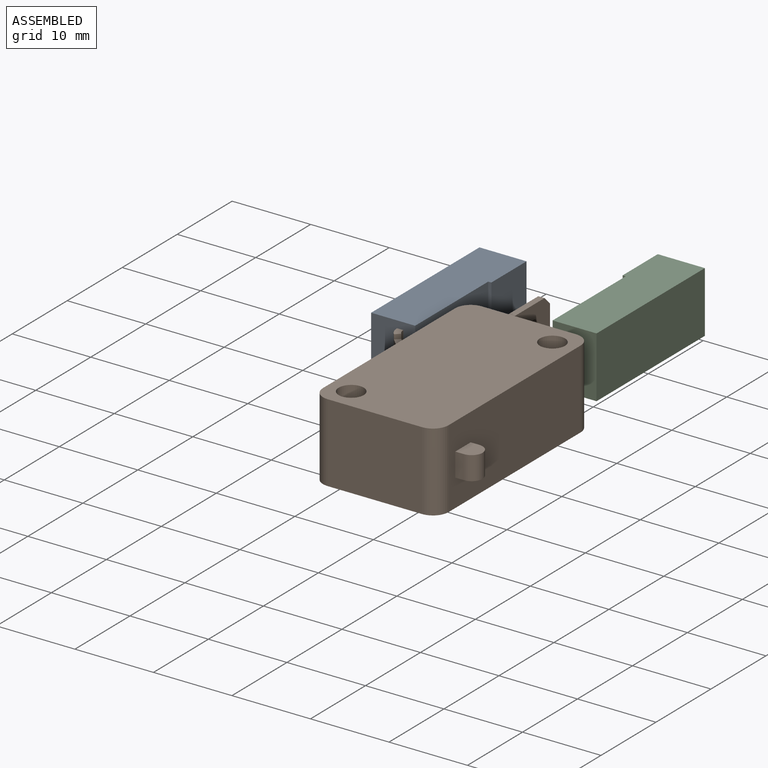
[diagram: assembled view]
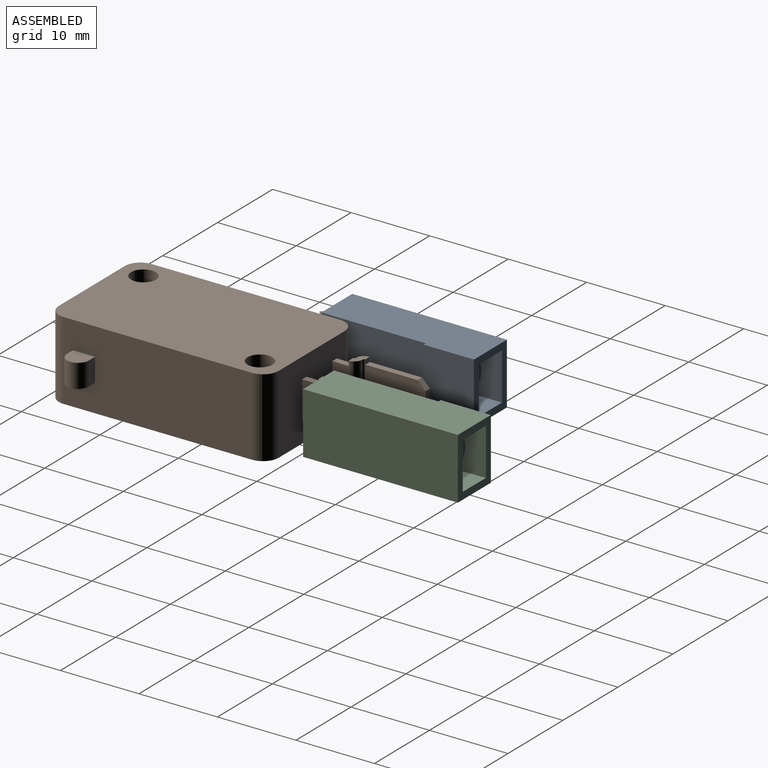
[diagram: assembled view, second angle]
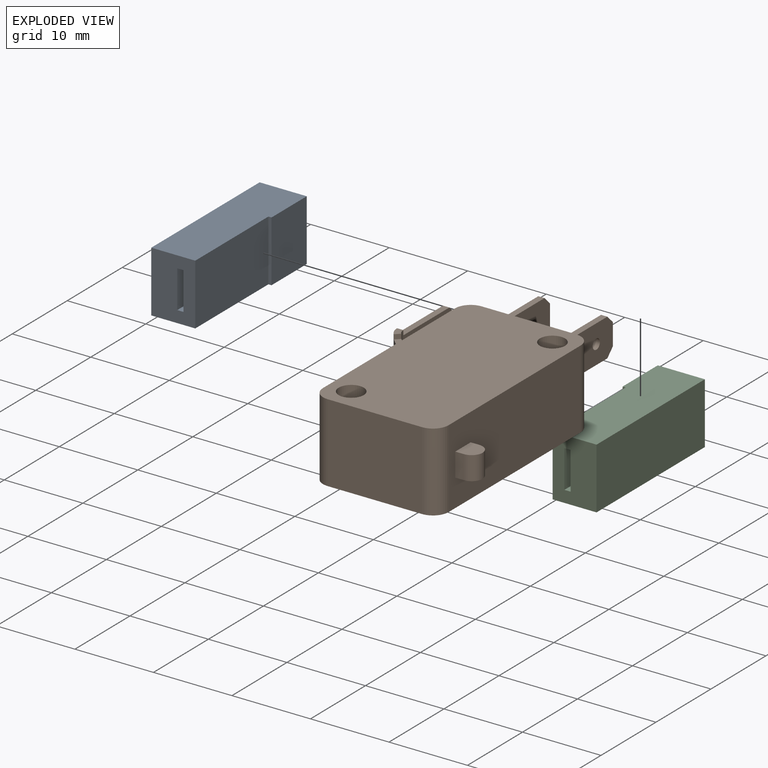
[diagram: exploded view]
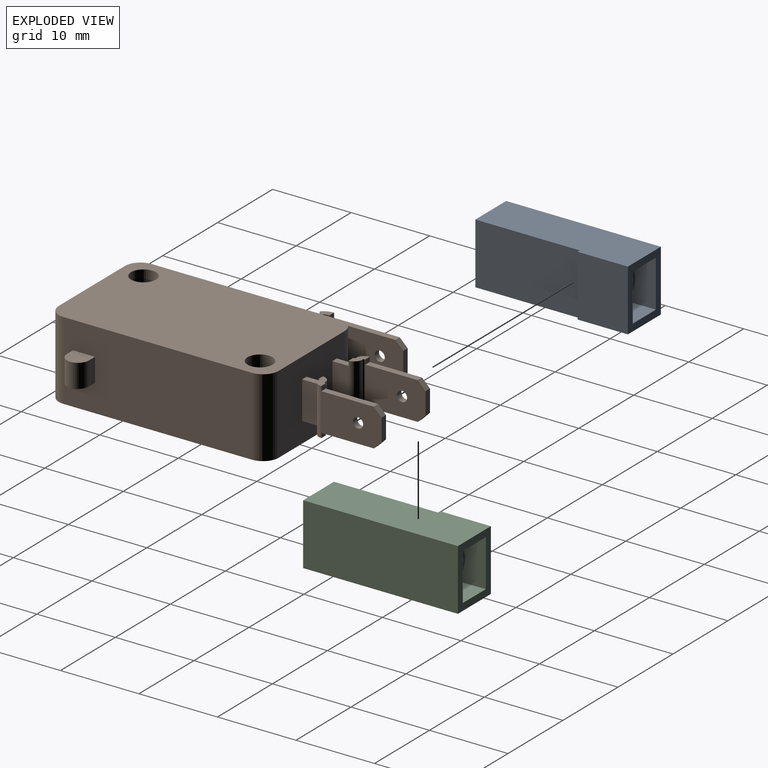
[diagram: exploded view, second angle]
ASSEMBLY  parts=3 mates=6
PART A: 22 faces, bbox 7.8x19.7x6 mm
  f0: plane 7.8x5.6mm, normal (0,-1,0), area 39.8mm2, adj f4,f5,f6,f7,f17,f18,f19,f20
  f1: plane 7.8x6mm, normal (0,1,0), area 21.6mm2, adj f2,f5,f6,f7,f8,f10,f11,f12
  f2: plane 7.8x6.4mm, normal (0,0,1), area 49.9mm2, adj f1,f3,f6,f7
  f3: plane 7.8x0.4mm, normal (0,-1,0), area 3.1mm2, adj f2,f4,f6,f7
  f4: plane 13.3x7.8mm, normal (0,0,1), area 103.7mm2, adj f0,f3,f6,f7
  f5: plane 19.7x7.8mm, normal (0,0,-1), area 153.7mm2, adj f0,f1,f6,f7
  f6: plane 19.7x6mm, normal (1,0,0), area 112.9mm2, adj f0,f1,f2,f3,f4,f5
  f7: plane 19.7x6mm, normal (-1,0,0), area 112.9mm2, adj f0,f1,f2,f3,f4,f5
  f8: plane 10.7x6mm, normal (0,0.02,-1), area 64.2mm2, adj f1,f9,f11,f12
  f9: plane 6x4mm, normal (0,1,0), area 12.7mm2, adj f8,f10,f11,f12,f15
  f10: plane 10.7x6mm, normal (0,0,1), area 64.2mm2, adj f1,f9,f11,f12
  f11: plane 10.7x4.2mm, normal (1,0,0), area 43.9mm2, adj f1,f8,f9,f10
  f12: plane 10.7x4.2mm, normal (-1,0,0), area 43.9mm2, adj f1,f8,f9,f10
  f13: plane 3.8x3.8mm, normal (0,1,0), area 4.3mm2, adj f14,f15
  f14: cylinder r=1.5mm len=8.2mm, axis (0,-1,0), area 77.3mm2, adj f13,f16
  f15: cylinder r=1.9mm len=8.2mm, axis (0,-1,0), area 97.9mm2, adj f9,f13
  f16: plane 3x3mm, normal (0,1,0), area 7.1mm2, adj f14
  f17: plane 8x4.8mm, normal (0,0,-1), area 38.4mm2, adj f0,f18,f20,f21
  f18: plane 8x0.8mm, normal (1,0,0), area 6.4mm2, adj f0,f17,f19,f21
  f19: plane 8x4.8mm, normal (0,0,1), area 38.4mm2, adj f0,f18,f20,f21
  f20: plane 8x0.8mm, normal (-1,0,0), area 6.4mm2, adj f0,f17,f19,f21
  f21: plane 4.8x0.8mm, normal (0,-1,0), area 3.8mm2, adj f17,f18,f19,f20
PART B: 81 faces, bbox 23.1x39x10 mm
  f0: plane 12x10mm, normal (0,1,0), area 112.3mm2, adj f2,f3,f10,f11,f18,f20,f36,f37
  f1: plane 24x10mm, normal (1,0,0), area 231.6mm2, adj f2,f9,f10,f11,f12,f13,f14,f15
  f2: cylinder r=2mm len=10mm, axis (0,0,-1), area 31.4mm2, adj f0,f1,f10,f11
  f3: cylinder r=2mm len=10mm, axis (0,0,-1), area 31.4mm2, adj f0,f4,f10,f11
  f4: plane 24x10mm, normal (-1,0,0), area 234.6mm2, adj f3,f5,f10,f11,f62,f63,f69,f73
  f5: cylinder r=2mm len=10mm, axis (0,0,-1), area 31.4mm2, adj f4,f6,f10,f11
  f6: plane 12x10mm, normal (0,-1,0), area 120mm2, adj f5,f9,f10,f11
  f7: cylinder r=1.6mm len=10mm, axis (0,0,-1), area 100.5mm2, adj f10,f11
  f8: cylinder r=1.6mm len=10mm, axis (0,0,-1), area 100.5mm2, adj f10,f11
  f9: cylinder r=2mm len=10mm, axis (0,0,-1), area 31.4mm2, adj f1,f6,f10,f11
  f10: plane 28x16mm, normal (0,0,1), area 428.5mm2, adj f0,f1,f2,f3,f4,f5,f6,f7
  f11: plane 28x16mm, normal (0,0,-1), area 428.5mm2, adj f0,f1,f2,f3,f4,f5,f6,f7
  f12: plane 3x1.1mm, normal (0,-1,0), area 3.3mm2, adj f1,f14,f15,f16
  f13: plane 3x1.1mm, normal (0,1,0), area 3.3mm2, adj f1,f14,f15,f16
  f14: plane 2.8x2.5mm, normal (0,0,1), area 6.2mm2, adj f1,f12,f13,f16
  f15: plane 2.8x2.5mm, normal (0,0,-1), area 6.2mm2, adj f1,f12,f13,f16
  f16: cylinder r=1.4mm len=3mm, axis (0,0,-1), area 13.2mm2, adj f12,f13,f14,f15
  f17: plane 2.8x0.8mm, normal (0,1,0), area 2.2mm2, adj f22,f23,f31,f32
  f18: plane 4.8x2.08mm, normal (1,0,0), area 10mm2, adj f0,f24,f36,f37
  f19: plane 2.05x1.25mm, normal (0,0,-1), area 1.6mm2, adj f24,f25,f26,f27,f34,f38
  f20: plane 4.8x2.08mm, normal (-1,0,0), area 10mm2, adj f0,f25,f36,f37
  f21: plane 2.05x1.25mm, normal (0,0,1), area 1.6mm2, adj f24,f25,f26,f27,f29,f35
  f22: plane 7.68x4.8mm, normal (1,0,0), area 34.5mm2, adj f17,f26,f28,f30,f31,f32,f33
  f23: plane 7.68x4.8mm, normal (-1,0,0), area 34.5mm2, adj f17,f27,f28,f30,f31,f32,f33
  f24: cylinder r=1.03mm len=6mm, axis (0,0,1), area 9.7mm2, adj f18,f19,f21,f26,f35,f38
  f25: cylinder r=0.23mm len=6mm, axis (0,0,1), area 2.1mm2, adj f19,f20,f21,f27,f35,f38
  f26: cylinder r=0.23mm len=6mm, axis (0,0,-1), area 2.1mm2, adj f19,f21,f22,f24,f29,f34
  f27: cylinder r=1.03mm len=6mm, axis (0,0,-1), area 9.7mm2, adj f19,f21,f23,f25,f29,f34
  f28: cylinder r=0.65mm len=1.3mm, axis (1,0,0), area 3.3mm2, adj f22,f23
  f29: plane 0.8x0.6mm, normal (0,1,0), area 0.5mm2, adj f21,f26,f27,f30
  f30: plane 6.68x0.8mm, normal (0,0,1), area 5.3mm2, adj f22,f23,f29,f31
  f31: plane 1x1mm, normal (0,0.71,0.71), area 1.1mm2, adj f17,f22,f23,f30
  f32: plane 1x1mm, normal (0,0.71,-0.71), area 1.1mm2, adj f17,f22,f23,f33
  f33: plane 6.68x0.8mm, normal (0,0,-1), area 5.3mm2, adj f22,f23,f32,f34
  f34: plane 0.8x0.6mm, normal (0,1,0), area 0.5mm2, adj f19,f26,f27,f33
  f35: plane 0.8x0.6mm, normal (0,-1,0), area 0.5mm2, adj f21,f24,f25,f36
  f36: plane 2.08x0.8mm, normal (0,0,1), area 1.7mm2, adj f0,f18,f20,f35
  f37: plane 2.08x0.8mm, normal (0,0,-1), area 1.7mm2, adj f0,f18,f20,f38
  f38: plane 0.8x0.6mm, normal (0,-1,0), area 0.5mm2, adj f19,f24,f25,f37
  f39: plane 2.8x0.8mm, normal (0,1,0), area 2.2mm2, adj f48,f49,f53,f54
  f40: plane 4.8x2.08mm, normal (-1,0,0), area 10mm2, adj f0,f44,f58,f59
  f41: plane 2.05x1.25mm, normal (0,0,-1), area 1.6mm2, adj f44,f45,f46,f47,f51,f57
  f42: plane 4.8x2.08mm, normal (1,0,0), area 10mm2, adj f0,f45,f58,f59
  f43: plane 2.05x1.25mm, normal (0,0,1), area 1.6mm2, adj f44,f45,f46,f47,f56,f60
  f44: cylinder r=1.03mm len=6mm, axis (0,0,1), area 9.7mm2, adj f40,f41,f43,f46,f57,f60
  f45: cylinder r=0.23mm len=6mm, axis (0,0,1), area 2.1mm2, adj f41,f42,f43,f47,f57,f60
  f46: cylinder r=0.23mm len=6mm, axis (0,0,-1), area 2.1mm2, adj f41,f43,f44,f48,f51,f56
  f47: cylinder r=1.03mm len=6mm, axis (0,0,-1), area 9.7mm2, adj f41,f43,f45,f49,f51,f56
  f48: plane 7.68x4.8mm, normal (-1,0,0), area 34.5mm2, adj f39,f46,f50,f52,f53,f54,f55
  f49: plane 7.68x4.8mm, normal (1,0,0), area 34.5mm2, adj f39,f47,f50,f52,f53,f54,f55
  f50: cylinder r=0.65mm len=1.3mm, axis (-1,0,0), area 3.3mm2, adj f48,f49
  f51: plane 0.8x0.6mm, normal (0,1,0), area 0.5mm2, adj f41,f46,f47,f52
  f52: plane 6.68x0.8mm, normal (0,0,-1), area 5.3mm2, adj f48,f49,f51,f53
  f53: plane 1x1mm, normal (0,0.71,-0.71), area 1.1mm2, adj f39,f48,f49,f52
  f54: plane 1x1mm, normal (0,0.71,0.71), area 1.1mm2, adj f39,f48,f49,f55
  f55: plane 6.68x0.8mm, normal (0,0,1), area 5.3mm2, adj f48,f49,f54,f56
  f56: plane 0.8x0.6mm, normal (0,1,0), area 0.5mm2, adj f43,f46,f47,f55
  f57: plane 0.8x0.6mm, normal (0,-1,0), area 0.5mm2, adj f41,f44,f45,f58
  f58: plane 2.08x0.8mm, normal (0,0,-1), area 1.7mm2, adj f0,f40,f42,f57
  f59: plane 2.08x0.8mm, normal (0,0,1), area 1.7mm2, adj f0,f40,f42,f60
  f60: plane 0.8x0.6mm, normal (0,-1,0), area 0.5mm2, adj f43,f44,f45,f59
  f61: plane 0.6x0.57mm, normal (0.71,-0.71,0), area 0.5mm2, adj f62,f65,f70,f71
  f62: plane 4.58x4.01mm, normal (0,0,-1), area 4.2mm2, adj f4,f61,f63,f69
  f63: plane 4.8x4.01mm, normal (-0.71,-0.71,0), area 27.2mm2, adj f4,f62,f71,f73
  f64: plane 2.8x0.8mm, normal (0,1,0), area 2.2mm2, adj f66,f68,f76,f77
  f65: plane 1.41x1.15mm, normal (0,0,-1), area 1mm2, adj f61,f70,f71,f74
  f66: plane 9.37x4.8mm, normal (1,0,0), area 42.7mm2, adj f64,f70,f75,f76,f77,f79,f80
  f67: plane 1.41x1.15mm, normal (0,0,1), area 1mm2, adj f70,f71,f72,f78
  f68: plane 9.37x4.8mm, normal (-1,0,0), area 42.7mm2, adj f64,f71,f75,f76,f77,f79,f80
  f69: plane 4.8x3.45mm, normal (0.71,0.71,0), area 23.4mm2, adj f4,f62,f70,f73
  f70: cylinder r=1.2mm len=6mm, axis (0,0,1), area 5.7mm2, adj f61,f65,f66,f67,f69,f72,f74,f78
  f71: cylinder r=2mm len=6mm, axis (0,0,1), area 9.4mm2, adj f61,f63,f65,f67,f68,f72,f74,f78
  f72: plane 0.6x0.57mm, normal (0.71,-0.71,0), area 0.5mm2, adj f67,f70,f71,f73
  f73: plane 4.58x4.01mm, normal (0,0,1), area 4.2mm2, adj f4,f63,f69,f72
  f74: plane 0.8x0.6mm, normal (0,1,0), area 0.5mm2, adj f65,f70,f71,f75
  f75: plane 8.37x0.8mm, normal (0,0,-1), area 6.7mm2, adj f66,f68,f74,f76
  f76: plane 1x1mm, normal (0,0.71,-0.71), area 1.1mm2, adj f64,f66,f68,f75
  f77: plane 1x1mm, normal (0,0.71,0.71), area 1.1mm2, adj f64,f66,f68,f79
  f78: plane 0.8x0.6mm, normal (0,1,0), area 0.5mm2, adj f67,f70,f71,f79
  f79: plane 8.37x0.8mm, normal (0,0,1), area 6.7mm2, adj f66,f68,f77,f78
  f80: cylinder r=0.65mm len=1.3mm, axis (-1,0,0), area 3.3mm2, adj f66,f68
PART C: same geometry as A
PLACE A rot(axis=(0,1,0),90deg) t=(-11.8,8.03,0)mm
PLACE B at identity fixed
PLACE C rot(axis=(0,-1,0),90deg) t=(2.2,17.32,0)mm
MATE planar B.f68 <-> A.f19  axis (-1,0,0) through (-12.6,12.56,0)mm
MATE planar A.f0 <-> B.f78  axis (0,-1,0) through (-13.19,8.03,0)mm
MATE planar B.f75 <-> A.f20  axis (0,0,-1) through (-12.2,12.21,-2.4)mm
MATE planar C.f18 <-> B.f52  axis (0,0,1) through (2.6,21.32,-2.4)mm
MATE planar B.f49 <-> C.f19  axis (1,0,0) through (3,21.03,0)mm
MATE planar B.f56 <-> C.f0  axis (0,1,0) through (2.6,17.32,2.7)mm
